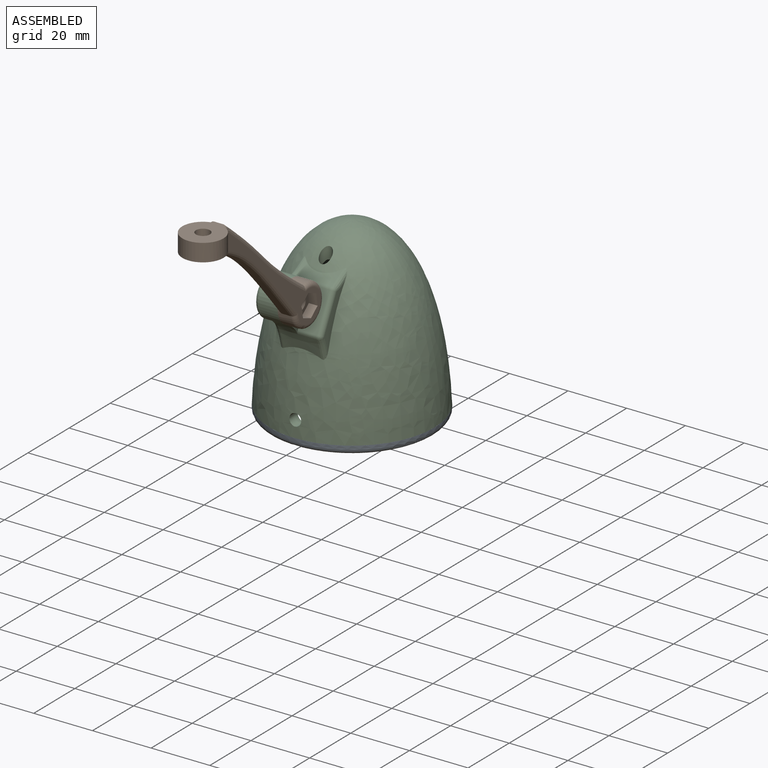
[diagram: assembled view]
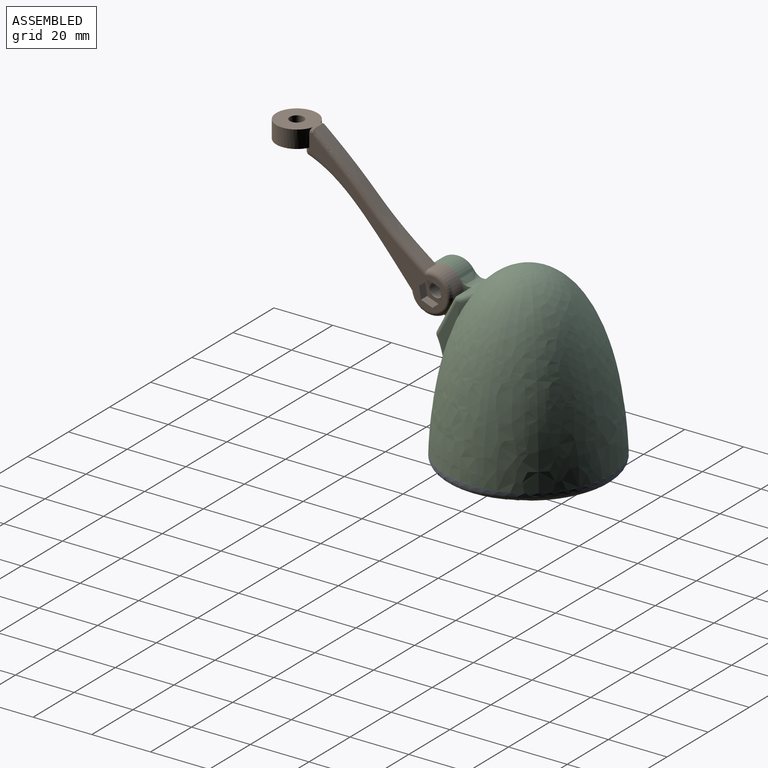
[diagram: assembled view, second angle]
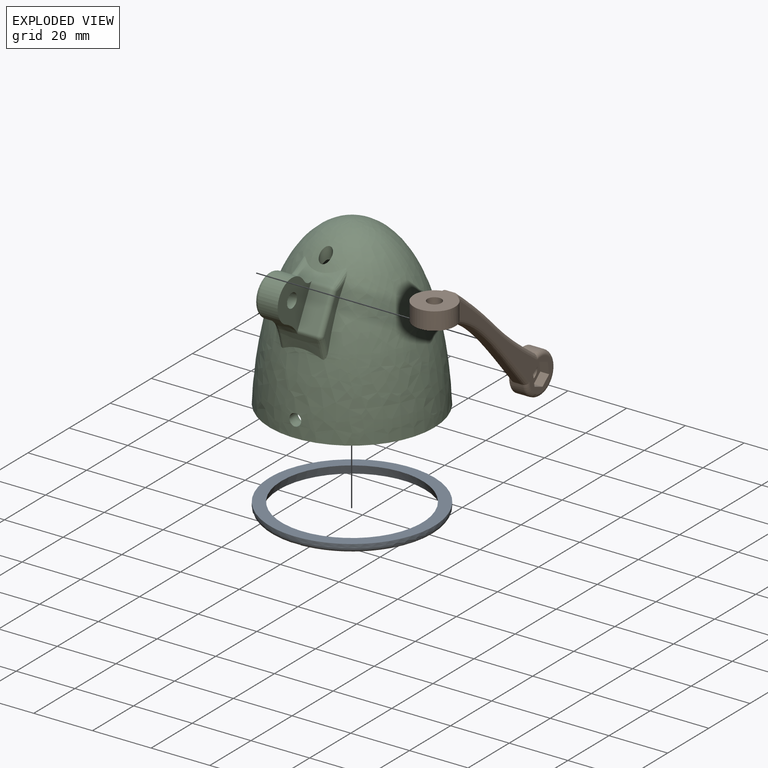
[diagram: exploded view]
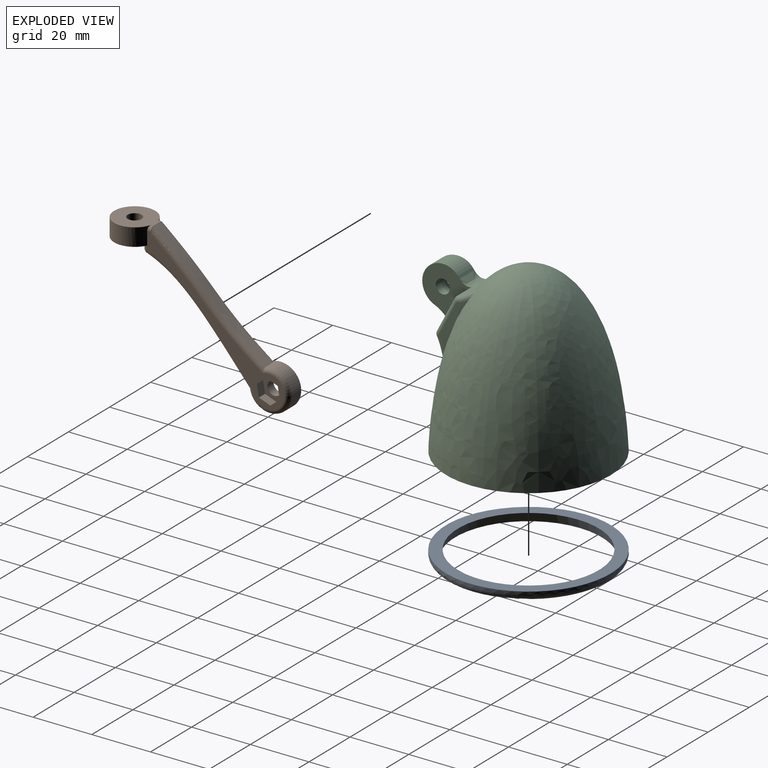
[diagram: exploded view, second angle]
ASSEMBLY  parts=3 mates=2
PART A: 5 faces, bbox 60.6x60.6x3.4 mm
  f0: plane 56x56mm, normal (0,0,1), area 653.5mm2, adj f1,f3
  f1: cone r=25mm half-angle=18.4deg, axis (0,0,-1), area 486.8mm2, adj f0,f2
  f2: plane 52x52mm, normal (0,0,-1), area 160.2mm2, adj f1,f4
  f3: cylinder r=28mm len=56mm, axis (0,0,-1), area 175.9mm2, adj f0,f4
  f4: torus R=26mm, axis (0,0,1), area 538.4mm2, adj f2,f3
PART B: 40 faces, bbox 14.5x63.1x50 mm
  f0: plane 46.92x44mm, normal (1,0,0), area 222.4mm2, adj f6,f12,f13,f14,f15,f16,f17,f21
  f1: extruded ~35.01x32.17mm, area 144.2mm2, adj f4,f6,f8,f35
  f2: extruded ~3x1.7mm, area 5.2mm2, adj f5,f7,f29,f32
  f3: plane 48.42x45.5mm, normal (-1,0,0), area 298.1mm2, adj f4,f8,f9,f10,f19,f20,f25,f27
  f4: bspline ~42.43x40.06mm, area 111.9mm2, adj f1,f3,f8,f36
  f5: bspline ~4.93x2.2mm, area 0.8mm2, adj f2,f29,f32
  f6: bspline ~42.43x40.06mm, area 114.5mm2, adj f0,f1,f24,f34
  f7: bspline ~4.93x2.2mm, area 0.8mm2, adj f2,f29,f32
  f8: cylinder r=7mm len=7.24mm, axis (-1,0,0), area 29.3mm2, adj f1,f3,f4,f9,f24
  f9: extruded ~4.5x1.56mm, area 7.7mm2, adj f3,f8,f10,f23
  f10: cylinder r=7mm len=14mm, axis (-1,0,0), area 117.4mm2, adj f3,f9,f11,f20,f22
  f11: extruded ~38.36x33.2mm, area 152.3mm2, adj f10,f20,f21,f28
  f12: plane 3.22x3mm, normal (0,0.63,-0.77), area 12.5mm2, adj f0,f13,f17,f18
  f13: plane 4.1x3mm, normal (0,0.99,0.16), area 12.5mm2, adj f0,f12,f14,f18
  f14: plane 3.89x3mm, normal (0,0.35,0.94), area 12.5mm2, adj f0,f13,f15,f18
  f15: plane 3.22x3mm, normal (0,-0.63,0.77), area 12.5mm2, adj f0,f14,f16,f18
  f16: plane 4.1x3mm, normal (0,-0.99,-0.16), area 12.5mm2, adj f0,f15,f17,f18
  f17: plane 3.89x3mm, normal (0,-0.35,-0.94), area 12.5mm2, adj f0,f12,f16,f18
  f18: plane 8.2x7.78mm, normal (1,0,0), area 26.8mm2, adj f12,f13,f14,f15,f16,f17,f19
  f19: cylinder r=2.4mm len=4.8mm, axis (-1,0,0), area 45.2mm2, adj f3,f18
  f20: bspline ~44.43x38.3mm, area 117.1mm2, adj f3,f10,f11,f25
  f21: bspline ~44.44x38.3mm, area 119.2mm2, adj f0,f11,f22,f26
  f22: torus R=5.5mm, axis (1,0,0), area 56.8mm2, adj f0,f10,f21,f23
  f23: bspline ~4.55x3.31mm, area 3.9mm2, adj f0,f9,f22,f24
  f24: torus R=5.5mm, axis (1,0,0), area 13.7mm2, adj f0,f6,f8,f23
  f25: plane 2.4x1.97mm, normal (0,1,0), area 0.1mm2, adj f3,f20,f39
  f26: plane 2.4x1.97mm, normal (0,1,0), area 0.1mm2, adj f0,f21,f38
  f27: cylinder r=7mm len=14mm, axis (0,0,-1), area 229.1mm2, adj f0,f3,f28,f29,f38,f39
  f28: plane 14.63x14mm, normal (0,0,1), area 137.9mm2, adj f11,f27,f30,f38,f39
  f29: plane 14.44x13.76mm, normal (0,0,-1), area 118mm2, adj f0,f2,f3,f5,f7,f27,f30,f31
  f30: cylinder r=2.4mm len=6mm, axis (0,0,-1), area 90.5mm2, adj f28,f29
  f31: cylinder r=4.9mm len=2.3mm, axis (0,0,1), area 3.3mm2, adj f29,f33,f35,f37
  f32: cylinder r=4.9mm len=4.82mm, axis (0,0,1), area 1mm2, adj f2,f5,f7,f29
  f33: cylinder r=1.5mm len=1.85mm, axis (0,0,1), area 3.9mm2, adj f0,f29,f31,f34
  f34: sphere r=1.5mm, area 3.1mm2, adj f6,f33,f35
  f35: bspline ~5.67x1.65mm, area 4.8mm2, adj f1,f31,f34,f36
  f36: sphere r=1.5mm, area 2.3mm2, adj f4,f35,f37
  f37: cylinder r=1.5mm len=1.85mm, axis (0,0,1), area 3.9mm2, adj f3,f29,f31,f36
  f38: cylinder r=1.5mm len=1.5mm, axis (0,-1,0), area 2.5mm2, adj f0,f26,f27,f28
  f39: cylinder r=1.5mm len=1.5mm, axis (0,1,0), area 2.5mm2, adj f3,f25,f27,f28
PART C: 27 faces, bbox 58.1x66.8x58.6 mm
  f0: revolved ~56.58x56mm, area 8021.3mm2, adj f2,f5,f6,f7,f8,f15,f16,f18
  f1: revolved ~51.58x47.58mm, area 6450.9mm2, adj f3,f25,f26
  f2: plane 56x56mm, normal (0,0,-1), area 483.8mm2, adj f0,f4
  f3: plane 49.78x49.78mm, normal (0,0,-1), area 168.2mm2, adj f1,f4
  f4: cone r=25.1mm half-angle=6deg, axis (0,0,-1), area 315.8mm2, adj f2,f3
  f5: extruded ~13x10.02mm, area 88.5mm2, adj f0,f10,f11,f15,f21,f24
  f6: extruded ~13x12.31mm, area 149.7mm2, adj f0,f10,f11,f16,f18,f19
  f7: plane 21.18x12.42mm, normal (1,0,0), area 44.6mm2, adj f0,f18,f21,f22
  f8: plane 23.75x22.1mm, normal (-1,0,0), area 110.4mm2, adj f0,f12,f15,f16,f17
  f9: plane 11.75x6.5mm, normal (0,-0.89,0.46), area 86.2mm2, adj f11,f19,f22,f24
  f10: cylinder r=7mm len=12.96mm, axis (1,0,0), area 162.5mm2, adj f5,f6,f11,f17
  f11: plane 18.72x17.11mm, normal (1,0,0), area 156.9mm2, adj f5,f6,f9,f10,f13,f19,f24
  f12: cylinder r=4.9mm len=9.8mm, axis (-1,0,0), area 123.2mm2, adj f8,f14
  f13: cylinder r=2.4mm len=4.8mm, axis (-1,0,0), area 60.3mm2, adj f11,f14
  f14: plane 9.8x9.8mm, normal (-1,0,0), area 57.3mm2, adj f12,f13
  f15: bspline ~12.9x5.23mm, area 25.9mm2, adj f0,f5,f8,f17
  f16: bspline ~15.41x11.13mm, area 36.4mm2, adj f0,f6,f8,f17
  f17: torus R=5.5mm, axis (1,0,0), area 54.2mm2, adj f8,f10,f15,f16
  f18: bspline ~9.06x4.4mm, area 15mm2, adj f0,f6,f7,f20
  f19: cylinder r=1.5mm len=6.5mm, axis (-1,0,0), area 9.5mm2, adj f6,f9,f11,f20
  f20: sphere r=1.5mm, area 1.9mm2, adj f18,f19,f22
  f21: bspline ~7.73x4.88mm, area 13.2mm2, adj f0,f5,f7,f23
  f22: cylinder r=1.5mm len=12.45mm, axis (0,0.46,0.89), area 31.2mm2, adj f7,f9,f20,f23
  f23: sphere r=1.5mm, area 1.9mm2, adj f21,f22,f24
  f24: cylinder r=1.5mm len=6.5mm, axis (-1,0,0), area 8.2mm2, adj f5,f9,f11,f23
  f25: cylinder r=2mm len=4mm, axis (0,1,0), area 50.2mm2, adj f0,f1
  f26: cylinder r=2mm len=9.71mm, axis (0,0,-1), area 61.3mm2, adj f0,f1
PLACE A t=(-0.89,16.17,0.73)mm
PLACE B t=(-0.89,16.17,0.73)mm
PLACE C t=(-0.89,16.17,0.73)mm
MATE fastened C.f4 <-> A.f1  axis (0,0,-1) through (-0.89,16.17,0.73)mm
MATE revolute B.f8 <-> C.f10  axis (-1,0,0) through (-0.89,-13.04,43.54)mm
